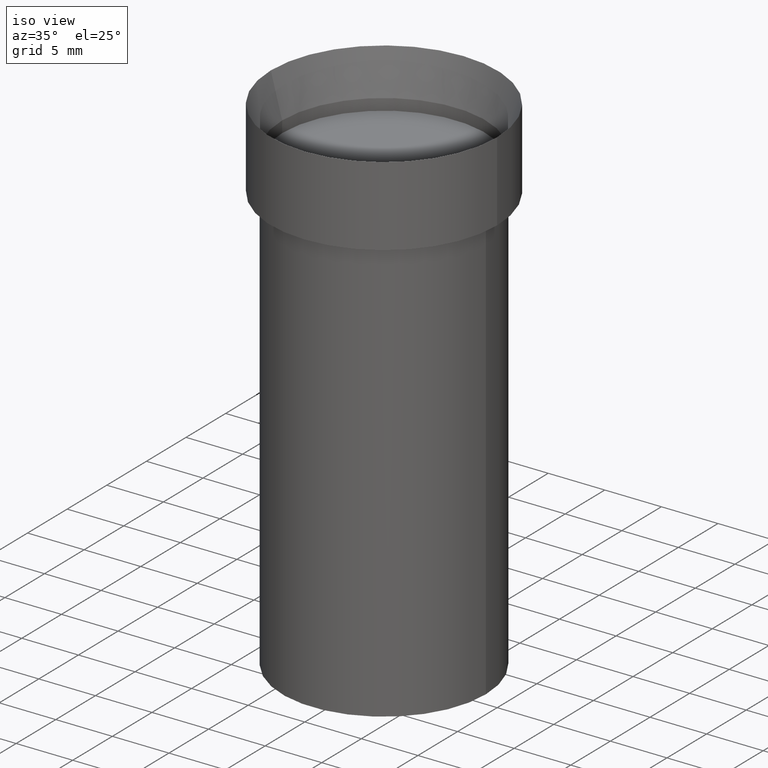
[diagram: clean part render]
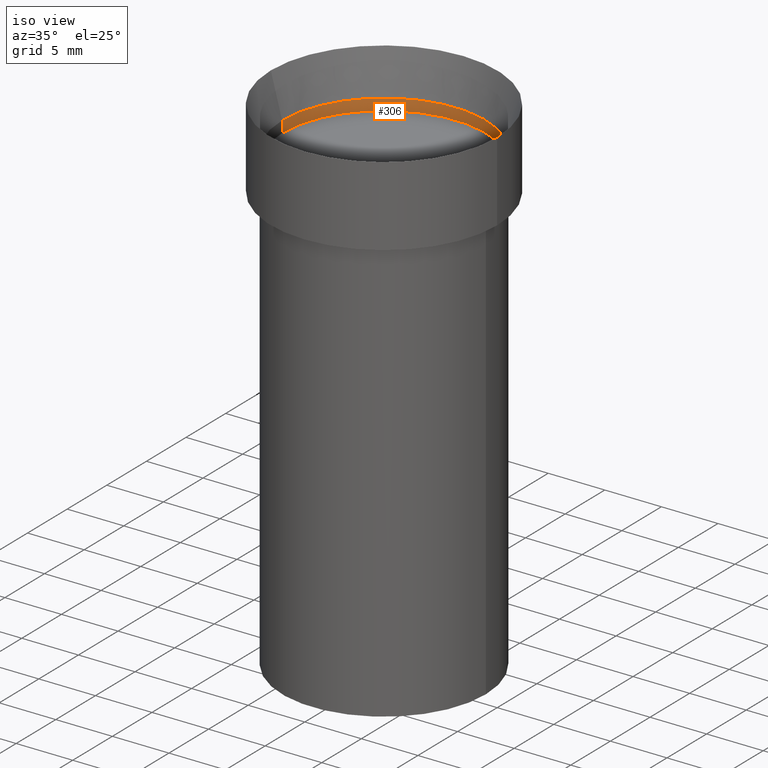
[diagram: same view with one face highlighted and labeled with its STEP entity id]
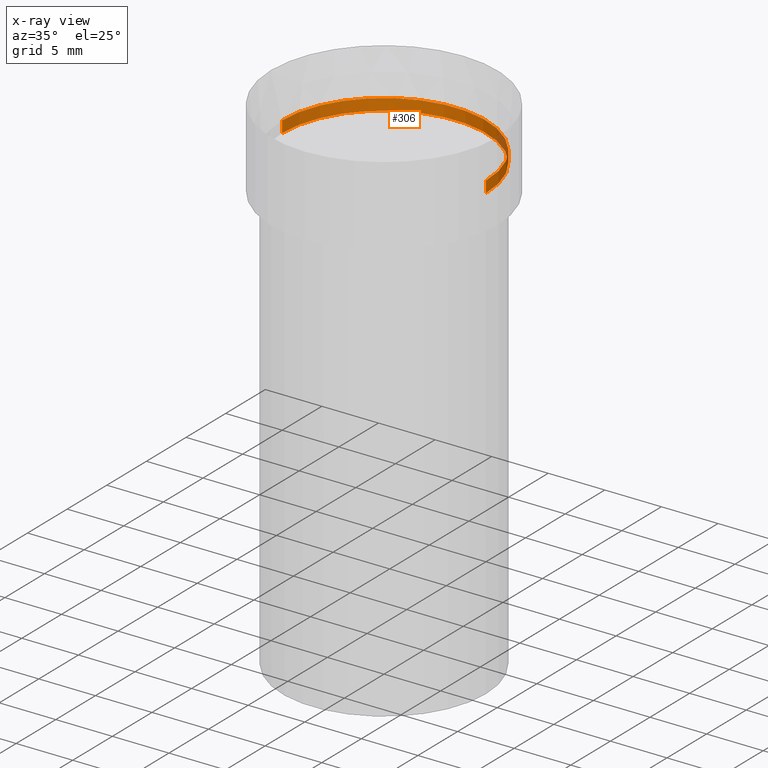
[diagram: x-ray of the same camera — body ghosted, the highlighted face saturated]
A machine part, iso view. The second image highlights one B-rep face of the part: STEP entity #306.
The next image is the same camera in x-ray: the body ghosted, the highlighted face saturated — about 4% of this face is hidden behind the body in this view.
In plain terms, the highlighted cylindrical surface (partial cylindrical patch) has radius 9.0005 mm, axis along (0, -0, -1).
Its self-contained STEP definition (entity closure, byte-faithful):
#10 = CARTESIAN_POINT ( 'NONE',  ( -1.841438011057409467E-30, 2.629085448148890871E-16, 0.07530000000000006133 ) ) ;
#21 = FACE_OUTER_BOUND ( 'NONE', #33, .T. ) ;
#23 = VECTOR ( 'NONE', #273, 39.37007874015748143 ) ;
#25 = CARTESIAN_POINT ( 'NONE',  ( -0.3543499999999999428, 3.315500661029671558E-15, 0.1150000000000000189 ) ) ;
#33 = EDGE_LOOP ( 'NONE', ( #397, #88, #81, #168 ) ) ;
#37 = EDGE_CURVE ( 'NONE', #361, #246, #196, .T. ) ;
#74 = AXIS2_PLACEMENT_3D ( 'NONE', #10, #392, #298 ) ;
#81 = ORIENTED_EDGE ( 'NONE', *, *, #37, .T. ) ;
#88 = ORIENTED_EDGE ( 'NONE', *, *, #286, .F. ) ;
#103 = VERTEX_POINT ( 'NONE', #408 ) ;
#124 = DIRECTION ( 'NONE',  ( -1.000000000000000000, 6.982962677686266711E-15, -4.876176775795935793E-29 ) ) ;
#143 = CARTESIAN_POINT ( 'NONE',  ( 0.3543499999999999428, -1.953909421918648105E-15, 0.1150000000000000189 ) ) ;
#164 = CYLINDRICAL_SURFACE ( 'NONE', #347, 0.3543499999999999983 ) ;
#168 = ORIENTED_EDGE ( 'NONE', *, *, #438, .T. ) ;
#186 = CIRCLE ( 'NONE', #74, 0.3543500000000000538 ) ;
#196 = LINE ( 'NONE', #269, #293 ) ;
#205 = CARTESIAN_POINT ( 'NONE',  ( 0.3543499999999999983, -2.431017465510342392E-15, 1.712721831774753992E-29 ) ) ;
#241 = LINE ( 'NONE', #205, #23 ) ;
#246 = VERTEX_POINT ( 'NONE', #407 ) ;
#257 = AXIS2_PLACEMENT_3D ( 'NONE', #447, #266, #345 ) ;
#266 = DIRECTION ( 'NONE',  ( 2.445468806185136597E-29, -3.491481338843145583E-15, -1.000000000000000000 ) ) ;
#269 = CARTESIAN_POINT ( 'NONE',  ( -0.3543499999999999983, 2.474412824838128694E-15, -1.727873240503289749E-29 ) ) ;
#271 = CARTESIAN_POINT ( 'NONE',  ( 0.000000000000000000, 0.000000000000000000, 0.000000000000000000 ) ) ;
#273 = DIRECTION ( 'NONE',  ( 2.445468806185136877E-29, -3.491481338843145188E-15, -1.000000000000000000 ) ) ;
#286 = EDGE_CURVE ( 'NONE', #361, #341, #411, .T. ) ;
#293 = VECTOR ( 'NONE', #455, 39.37007874015748143 ) ;
#298 = DIRECTION ( 'NONE',  ( -1.000000000000000000, 6.982962677686266711E-15, 0.000000000000000000 ) ) ;
#306 = ADVANCED_FACE ( 'NONE', ( #21 ), #164, .F. ) ;
#341 = VERTEX_POINT ( 'NONE', #143 ) ;
#345 = DIRECTION ( 'NONE',  ( -1.000000000000000000, 6.982962677686266711E-15, 0.000000000000000000 ) ) ;
#347 = AXIS2_PLACEMENT_3D ( 'NONE', #271, #442, #124 ) ;
#361 = VERTEX_POINT ( 'NONE', #25 ) ;
#368 = EDGE_CURVE ( 'NONE', #341, #103, #241, .T. ) ;
#392 = DIRECTION ( 'NONE',  ( 2.445468806185136597E-29, -3.491481338843145583E-15, -1.000000000000000000 ) ) ;
#397 = ORIENTED_EDGE ( 'NONE', *, *, #368, .F. ) ;
#407 = CARTESIAN_POINT ( 'NONE',  ( -0.3543500000000000538, 2.737321369653018176E-15, 0.07530000000000006133 ) ) ;
#408 = CARTESIAN_POINT ( 'NONE',  ( 0.3543500000000000538, -2.098803016119417641E-15, 0.07530000000000006133 ) ) ;
#411 = CIRCLE ( 'NONE', #257, 0.3543499999999999428 ) ;
#438 = EDGE_CURVE ( 'NONE', #246, #103, #186, .T. ) ;
#442 = DIRECTION ( 'NONE',  ( 2.445468806185136597E-29, -3.491481338843145583E-15, -1.000000000000000000 ) ) ;
#447 = CARTESIAN_POINT ( 'NONE',  ( -2.812289127112907395E-30, 4.015203539669618446E-16, 0.1150000000000000189 ) ) ;
#455 = DIRECTION ( 'NONE',  ( 2.445468806185136877E-29, -3.491481338843145188E-15, -1.000000000000000000 ) ) ;